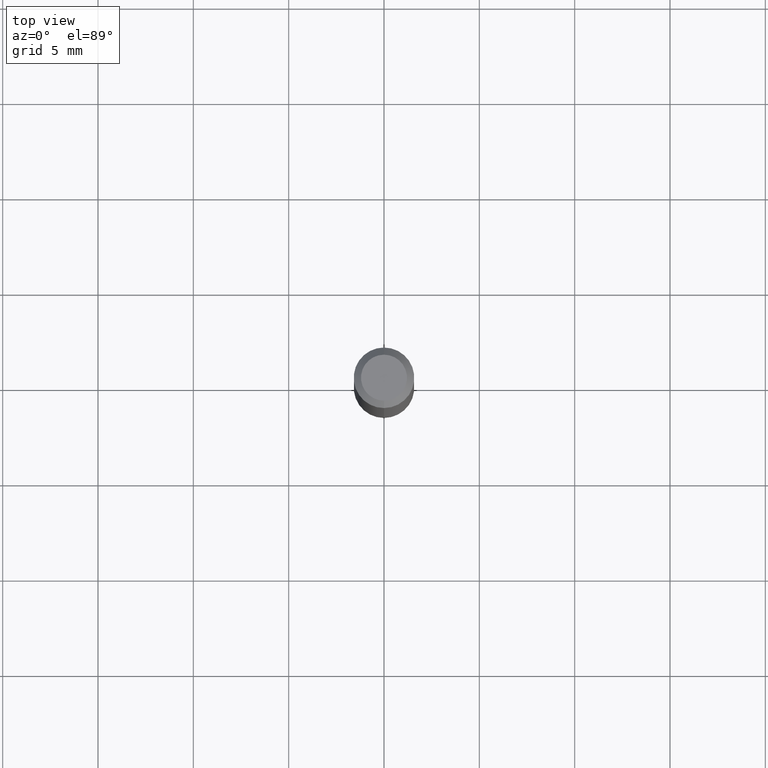
[diagram: clean part render]
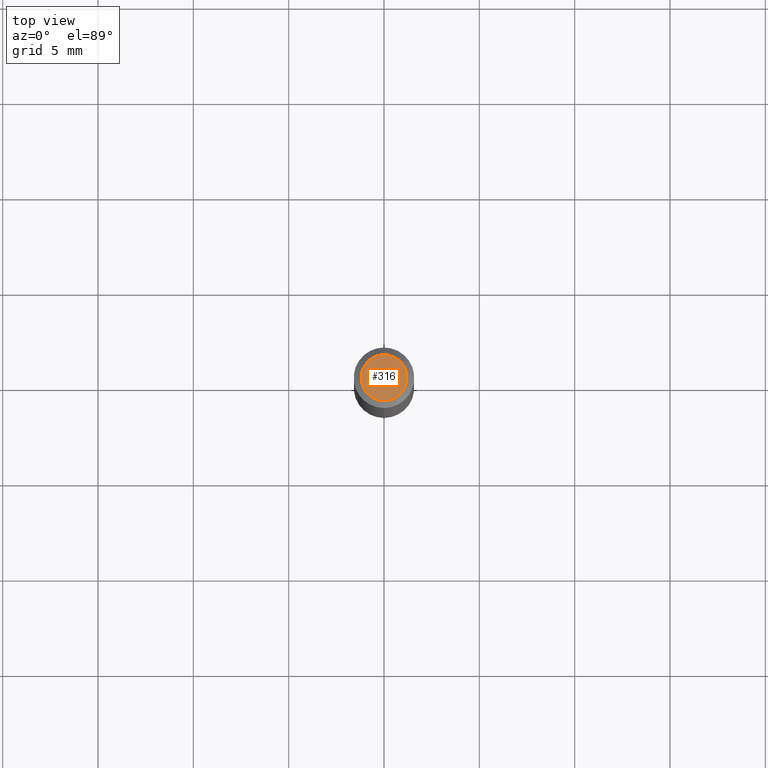
[diagram: same view with one face highlighted and labeled with its STEP entity id]
A machine part, top view. The second image highlights one B-rep face of the part: STEP entity #316.
In plain terms, the highlighted planar face has unit normal (0, -0, -1).
Its self-contained STEP definition (entity closure, byte-faithful):
#1 = VERTEX_POINT ( 'NONE', #409 ) ;
#6 = FACE_OUTER_BOUND ( 'NONE', #267, .T. ) ;
#28 = DIRECTION ( 'NONE',  ( -2.445428703718222053E-29, 3.491538767858258180E-15, 1.000000000000000000 ) ) ;
#56 = CIRCLE ( 'NONE', #477, 0.04750000000000004219 ) ;
#77 = AXIS2_PLACEMENT_3D ( 'NONE', #429, #228, #388 ) ;
#100 = AXIS2_PLACEMENT_3D ( 'NONE', #324, #489, #120 ) ;
#120 = DIRECTION ( 'NONE',  ( 6.982962677686265922E-15, 1.000000000000000000, -3.491538767858258180E-15 ) ) ;
#135 = CARTESIAN_POINT ( 'NONE',  ( -2.396082165746635668E-45, 3.421082675588868902E-31, 9.798209050639849508E-17 ) ) ;
#147 = ORIENTED_EDGE ( 'NONE', *, *, #378, .T. ) ;
#158 = PLANE ( 'NONE',  #100 ) ;
#228 = DIRECTION ( 'NONE',  ( -2.445428703718222053E-29, 3.491538767858258180E-15, 1.000000000000000000 ) ) ;
#251 = ORIENTED_EDGE ( 'NONE', *, *, #424, .T. ) ;
#267 = EDGE_LOOP ( 'NONE', ( #147, #251 ) ) ;
#306 = CARTESIAN_POINT ( 'NONE',  ( -3.773273898774342241E-16, -0.04750000000000004219, 2.638301819796658740E-16 ) ) ;
#316 = ADVANCED_FACE ( 'NONE', ( #6 ), #158, .F. ) ;
#324 = CARTESIAN_POINT ( 'NONE',  ( 3.316907271900979054E-16, 0.04750000000000004219, -1.168570462200681560E-16 ) ) ;
#377 = DIRECTION ( 'NONE',  ( -6.982962677686265133E-15, -1.000000000000000000, 3.491538767858258180E-15 ) ) ;
#378 = EDGE_CURVE ( 'NONE', #1, #498, #56, .T. ) ;
#388 = DIRECTION ( 'NONE',  ( -6.982962677686265133E-15, -1.000000000000000000, 3.491538767858258180E-15 ) ) ;
#409 = CARTESIAN_POINT ( 'NONE',  ( 3.840629472727450339E-16, 0.04750000000000004219, -6.786600096686893314E-17 ) ) ;
#419 = CIRCLE ( 'NONE', #77, 0.04750000000000004219 ) ;
#424 = EDGE_CURVE ( 'NONE', #498, #1, #419, .T. ) ;
#429 = CARTESIAN_POINT ( 'NONE',  ( -2.396082165746635668E-45, 3.421082675588868902E-31, 9.798209050639849508E-17 ) ) ;
#477 = AXIS2_PLACEMENT_3D ( 'NONE', #135, #28, #377 ) ;
#489 = DIRECTION ( 'NONE',  ( 2.445428703718221492E-29, -3.491538767858258180E-15, -1.000000000000000000 ) ) ;
#498 = VERTEX_POINT ( 'NONE', #306 ) ;